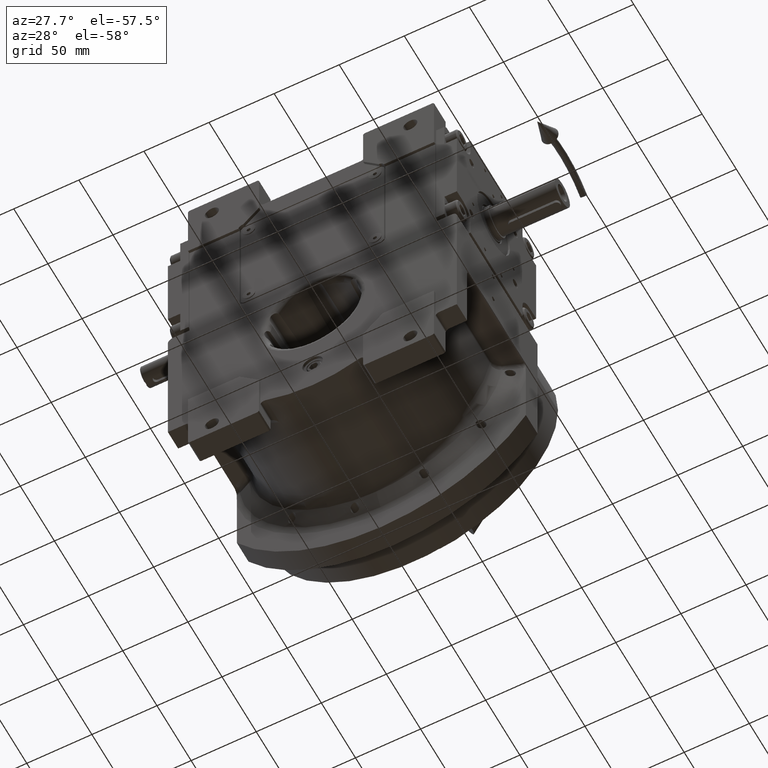
[diagram: clean part render]
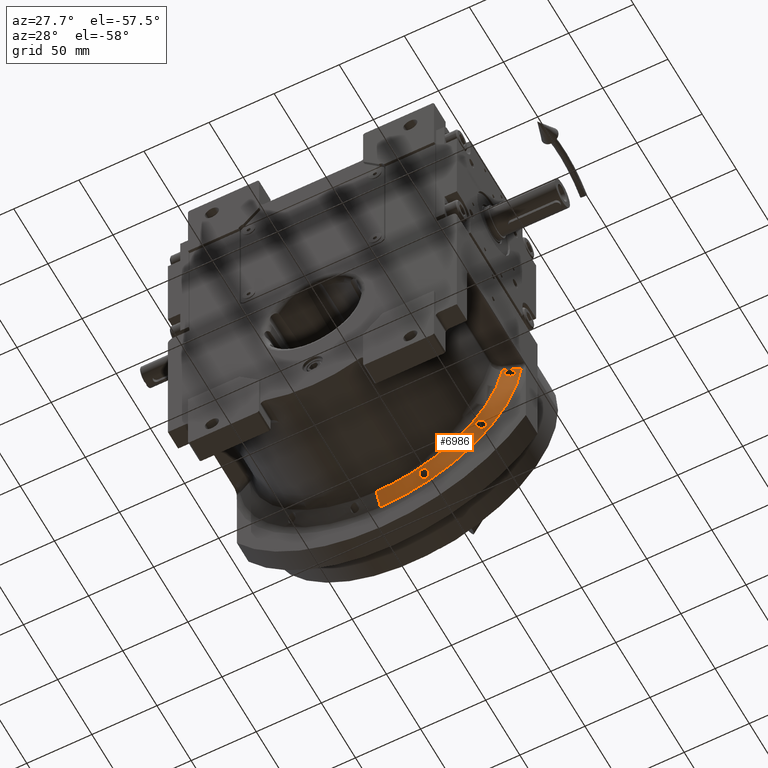
[diagram: same view with one face highlighted and labeled with its STEP entity id]
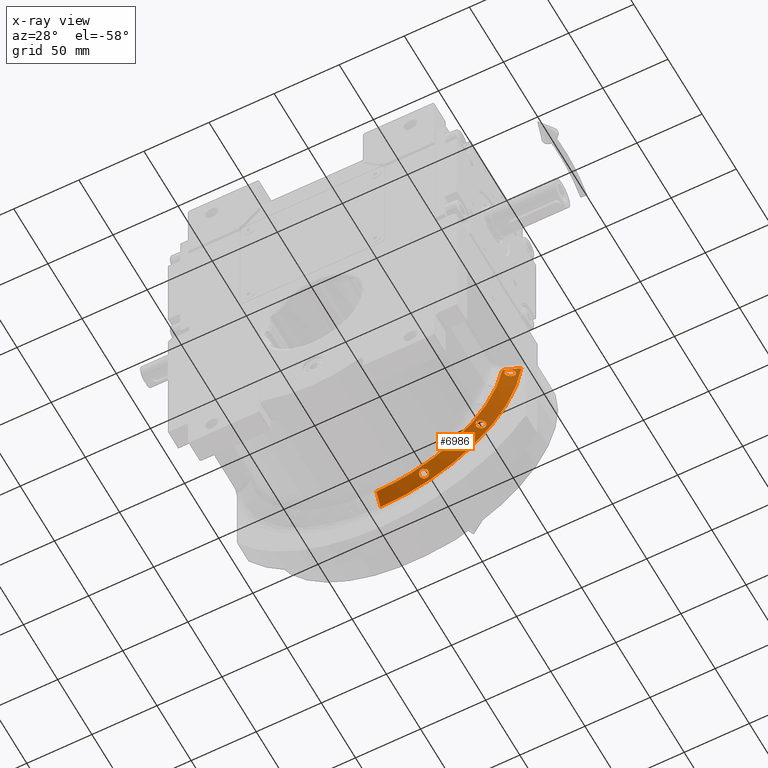
[diagram: x-ray of the same camera — body ghosted, the highlighted face saturated]
A machine part, auxiliary view. The second image highlights one B-rep face of the part: STEP entity #6986.
The next image is the same camera in x-ray: the body ghosted, the highlighted face saturated — about 0% of this face is hidden behind the body in this view.
In plain terms, the highlighted conical surface has half-angle 60 deg.
Its self-contained STEP definition (entity closure, byte-faithful):
#36 = CARTESIAN_POINT ( 'NONE',  ( 104.7305896036714898, 44.73562210325150801, -18.84664515431811083 ) ) ;
#185 = CARTESIAN_POINT ( 'NONE',  ( 32.74499979331582722, 43.56302191367302612, -99.11168312359436072 ) ) ;
#517 = CARTESIAN_POINT ( 'NONE',  ( 31.82807476254389911, 42.12333665457904885, -96.78833994094861737 ) ) ;
#576 = CARTESIAN_POINT ( 'NONE',  ( 75.50257764125468896, 41.27578349819874859, -66.20712379771359224 ) ) ;
#577 = B_SPLINE_CURVE_WITH_KNOTS ( 'NONE', 3,
 ( #46599, #5312, #36920, #57936, #16649, #37269, #31430, #10811, #47284, #26967, #26297, #11151, #32107, #42115, #53124, #42797, #63786, #58611, #11483, #32435, #53458, #25621, #67566, #12856, #17985, #28667, #38274, #43463, #48300, #37935, #23159, #66403, #64447, #58939, #11826, #53791, #1820, #28323, #54819, #38961, #6662, #17302, #14115, #59620, #43801, #64785, #49316 ),
 .UNSPECIFIED., .F., .F.,
 ( 4, 2, 1, 2, 2, 2, 2, 2, 2, 1, 1, 2, 2, 2, 1, 1, 2, 2, 2, 1, 2, 2, 2, 1, 2, 2, 4 ),
 ( 0.000000000000000000, 0.06249999999999647504, 0.09374999999999496236, 0.1093749999999941991, 0.1249999999999934497, 0.1874999999999822919, 0.2187499999999767686, 0.2499999999999712175, 0.3124999999999578670, 0.3437499999999488742, 0.3593749999999443778, 0.3671874999999439337, 0.3749999999999434896, 0.4374999999999385492, 0.4687499999999376055, 0.4843749999999358291, 0.4921874999999349409, 0.4999999999999340528, 0.5624999999999495959, 0.5937499999999562572, 0.6093749999999595879, 0.6249999999999630296, 0.6874999999999719114, 0.7187499999999755751, 0.7343749999999773515, 0.7499999999999791278, 1.000000000000000000 ),
 .UNSPECIFIED. ) ;
#714 = CARTESIAN_POINT ( 'NONE',  ( 99.21379510528599610, 41.78525512494649519, -20.46096465081143734 ) ) ;
#838 = CARTESIAN_POINT ( 'NONE',  ( 82.30257764125479980, 44.28258606598614477, -66.20712379771359224 ) ) ;
#1060 = CARTESIAN_POINT ( 'NONE',  ( 103.8688506381892154, 44.39772437606642086, -20.26160666850366709 ) ) ;
#1378 = ORIENTED_EDGE ( 'NONE', *, *, #65305, .T. ) ;
#1573 = ORIENTED_EDGE ( 'NONE', *, *, #34023, .T. ) ;
#1755 = EDGE_LOOP ( 'NONE', ( #22160, #1573 ) ) ;
#1820 = CARTESIAN_POINT ( 'NONE',  ( 80.31247240506789353, 42.27137465135887595, -63.11284630360542991 ) ) ;
#2204 = CARTESIAN_POINT ( 'NONE',  ( 99.90869290786369561, 41.61417265108745056, -14.84379635974889311 ) ) ;
#2441 = CARTESIAN_POINT ( 'NONE',  ( 98.77095998104464059, 41.48264450391729952, -20.01076472662889216 ) ) ;
#2550 = CARTESIAN_POINT ( 'NONE',  ( 104.4524746778598825, 44.33553877093233098, -16.31472158849535603 ) ) ;
#2657 = CARTESIAN_POINT ( 'NONE',  ( 37.72102010089252389, 44.51916381448128845, -99.10073259821800207 ) ) ;
#2882 = CARTESIAN_POINT ( 'NONE',  ( 101.2904685437481476, 42.37400265051466164, -14.48829029141643510 ) ) ;
#3224 = CARTESIAN_POINT ( 'NONE',  ( 99.12559328999067532, 41.21459212569217101, -15.39041156649699005 ) ) ;
#3337 = CARTESIAN_POINT ( 'NONE',  ( 37.90731452020949632, 44.44241846316928957, -98.88735861010312078 ) ) ;
#3460 = CARTESIAN_POINT ( 'NONE',  ( 34.44695147653789746, 40.81138761713231133, -93.46970191786731164 ) ) ;
#3567 = CARTESIAN_POINT ( 'NONE',  ( 104.5034803229542746, 44.37376943939167262, -16.41702113747007985 ) ) ;
#3786 = CARTESIAN_POINT ( 'NONE',  ( 35.84958330246156066, 41.07902352183315031, -93.43733019745623380 ) ) ;
#4125 = CARTESIAN_POINT ( 'NONE',  ( 35.62477118586380698, 41.01451881254240561, -93.40376681230237921 ) ) ;
#4348 = CARTESIAN_POINT ( 'NONE',  ( 32.13577895842203702, 42.95464872201561235, -98.20276710572547074 ) ) ;
#4401 = CARTESIAN_POINT ( 'NONE',  ( 81.01786868458300717, 44.69430768526024877, -68.87972968372881155 ) ) ;
#4465 = CARTESIAN_POINT ( 'NONE',  ( 37.34832133099863682, 41.76483843982503430, -94.12741214620686492 ) ) ;
#4534 = CARTESIAN_POINT ( 'NONE',  ( 89.14033502477229831, 39.87903548673092757, -65.00782844516591297 ) ) ;
#4742 = CARTESIAN_POINT ( 'NONE',  ( 77.52564601947658218, 43.34077812153503118, -69.31755484838247128 ) ) ;
#4802 = CARTESIAN_POINT ( 'NONE',  ( 32.44588961143497841, 41.16501762735255454, -94.83037568112649751 ) ) ;
#5075 = CARTESIAN_POINT ( 'NONE',  ( 78.71692355865346258, 43.96395827699821979, -69.60216623319919904 ) ) ;
#5219 = CARTESIAN_POINT ( 'NONE',  ( 99.74702419627114125, 42.13175411014589855, -20.84507893178069438 ) ) ;
#5312 = CARTESIAN_POINT ( 'NONE',  ( 75.50168352535824567, 41.18702486934389384, -65.97496794036376855 ) ) ;
#5349 = FACE_BOUND ( 'NONE', #23312, .T. ) ;
#5364 = CARTESIAN_POINT ( 'NONE',  ( 35.27085948881713762, 44.62271402355144545, -100.1891731509673775 ) ) ;
#5415 = CARTESIAN_POINT ( 'NONE',  ( 80.01211281521847241, 44.45760885408973451, -69.42112908227252888 ) ) ;
#5562 = CARTESIAN_POINT ( 'NONE',  ( 102.1859895358869466, 43.55316441206873179, -21.20908850535797896 ) ) ;
#5892 = CARTESIAN_POINT ( 'NONE',  ( 99.48311576402430489, 41.96223658807966217, -20.67216164523016531 ) ) ;
#6113 = AXIS2_PLACEMENT_3D ( 'NONE', #64490, #27682, #26338 ) ;
#6241 = CARTESIAN_POINT ( 'NONE',  ( 103.3774309199856987, 44.16679846782898267, -20.68573080184946278 ) ) ;
#6662 = CARTESIAN_POINT ( 'NONE',  ( 81.10081217298160539, 42.80630600283812726, -63.60911071821248441 ) ) ;
#6986 = ADVANCED_FACE ( 'NONE', ( #17009, #48001, #5349, #10849 ), #24772, .T. ) ;
#7723 = CARTESIAN_POINT ( 'NONE',  ( 100.9756395425152675, 42.19624724659421133, -14.51481566138915547 ) ) ;
#7833 = CARTESIAN_POINT ( 'NONE',  ( 38.19283949003306589, 44.27539490606698536, -98.46728952848269500 ) ) ;
#8044 = CARTESIAN_POINT ( 'NONE',  ( 99.48495558497224067, 41.39343208339167290, -15.09147301574736844 ) ) ;
#8230 = VERTEX_POINT ( 'NONE', #67617 ) ;
#8379 = CARTESIAN_POINT ( 'NONE',  ( 100.1612373964448182, 41.74909804742391373, -14.73327654689951416 ) ) ;
#8713 = CARTESIAN_POINT ( 'NONE',  ( 99.06054768989815784, 41.18296169481145341, -15.45210563829882844 ) ) ;
#8944 = CARTESIAN_POINT ( 'NONE',  ( 37.09040238943345713, 41.60670909699665998, -93.93498921525463174 ) ) ;
#9006 =( BOUNDED_CURVE ( )  B_SPLINE_CURVE ( 3, ( #58162, #11704, #22360, #16190 ),
 .UNSPECIFIED., .F., .F. ) 
 B_SPLINE_CURVE_WITH_KNOTS ( ( 4, 4 ),
 ( 0.07171175334500150267, 1.532246419677093741 ),
 .UNSPECIFIED. ) 
 CURVE ( )  GEOMETRIC_REPRESENTATION_ITEM ( )  RATIONAL_B_SPLINE_CURVE ( ( 1.000000000000000000, 0.8299973995656204639, 0.8299973995656204639, 1.000000000000000000 ) ) 
 REPRESENTATION_ITEM ( '' )  );
#9277 = CARTESIAN_POINT ( 'NONE',  ( 32.15635129628264366, 41.37616549507744423, -95.31507513556806543 ) ) ;
#9503 = CARTESIAN_POINT ( 'NONE',  ( 32.44088902882023717, 43.30831218894786616, -98.74738796992055256 ) ) ;
#9561 = CARTESIAN_POINT ( 'NONE',  ( 76.50053194958211122, 42.62877045109459573, -68.61366934577620214 ) ) ;
#9620 = CARTESIAN_POINT ( 'NONE',  ( 31.90722771532335855, 41.72991313817244219, -96.04450625783802309 ) ) ;
#9898 = CARTESIAN_POINT ( 'NONE',  ( 82.04631752290495683, 44.63937304269068562, -67.50136295896552951 ) ) ;
#9962 = CARTESIAN_POINT ( 'NONE',  ( 38.54567808786198668, 42.99278898431444418, -95.93945258858616398 ) ) ;
#10240 = CARTESIAN_POINT ( 'NONE',  ( 82.30312027397457086, 44.36707909284992013, -66.43993045154326182 ) ) ;
#10375 = CARTESIAN_POINT ( 'NONE',  ( 102.7737919349080755, 43.86262480539544839, -21.01216276955256745 ) ) ;
#10524 = CARTESIAN_POINT ( 'NONE',  ( 33.35947524260439678, 43.96307997796608191, -99.63762349857780976 ) ) ;
#10574 = CARTESIAN_POINT ( 'NONE',  ( 80.37038999809533379, 44.56015274701233153, -69.27850561015429776 ) ) ;
#10722 = CARTESIAN_POINT ( 'NONE',  ( 103.7637382403772079, 44.34947224226519324, -20.36349651328253429 ) ) ;
#10811 = CARTESIAN_POINT ( 'NONE',  ( 75.75725691288312191, 40.89895479112651344, -64.91691232173754145 ) ) ;
#10849 = FACE_OUTER_BOUND ( 'NONE', #22424, .T. ) ;
#10919 = CARTESIAN_POINT ( 'NONE',  ( 78.68750468294369682, 43.95056293916168499, -69.60040890559221793 ) ) ;
#11057 = CARTESIAN_POINT ( 'NONE',  ( 102.6448794516906560, 43.79565507627505383, -21.06343637548787839 ) ) ;
#11139 = VERTEX_POINT ( 'NONE', #838 ) ;
#11151 = CARTESIAN_POINT ( 'NONE',  ( 76.27655925909336077, 40.80134409709847887, -64.04341505215541019 ) ) ;
#11483 = CARTESIAN_POINT ( 'NONE',  ( 77.62005662338852119, 41.03680779787679711, -63.05707468420436612 ) ) ;
#11704 = CARTESIAN_POINT ( 'NONE',  ( 58.33757220637139795, 46.16024934371661459, -108.8793713190323729 ) ) ;
#11730 = CARTESIAN_POINT ( 'NONE',  ( 100.1827498323761745, 42.40190703451744270, -21.04707372465811588 ) ) ;
#11826 = CARTESIAN_POINT ( 'NONE',  ( 80.16297122289289234, 42.18066916998881055, -63.04881094446461276 ) ) ;
#12165 = VERTEX_POINT ( 'NONE', #29107 ) ;
#12390 = B_SPLINE_CURVE_WITH_KNOTS ( 'NONE', 3,
 ( #24799, #39946, #34417, #66771 ),
 .UNSPECIFIED., .F., .F.,
 ( 4, 4 ),
 ( 0.000000000000000000, 1.000000000000000000 ),
 .UNSPECIFIED. ) ;
#12533 = CARTESIAN_POINT ( 'NONE',  ( 101.4513232712928925, 42.46570187707141031, -14.48539551056563290 ) ) ;
#12856 = CARTESIAN_POINT ( 'NONE',  ( 78.24546640842405054, 41.24727612803696530, -62.86319037576406998 ) ) ;
#12879 = CARTESIAN_POINT ( 'NONE',  ( 104.2787028895823198, 44.21045678083616792, -16.02107098923681505 ) ) ;
#13112 = CARTESIAN_POINT ( 'NONE',  ( 98.03519856025749846, 40.83363030597479337, -17.88576229969384812 ) ) ;
#13476 = EDGE_CURVE ( 'NONE', #17799, #52347, #45724, .T. ) ;
#13661 = CARTESIAN_POINT ( 'NONE',  ( 38.42435501964425981, 44.04428755448597599, -97.94714423656049007 ) ) ;
#13782 = CARTESIAN_POINT ( 'NONE',  ( 37.88282062409838602, 42.16135516925404403, -94.65373359098414596 ) ) ;
#13891 = CARTESIAN_POINT ( 'NONE',  ( 98.54691129663279980, 40.94677882052950935, -16.07630637490219883 ) ) ;
#14058 = ORIENTED_EDGE ( 'NONE', *, *, #15629, .T. ) ;
#14115 = CARTESIAN_POINT ( 'NONE',  ( 81.29213445721266851, 42.95686035362223265, -63.78771252381076806 ) ) ;
#14450 = CARTESIAN_POINT ( 'NONE',  ( 32.78765595522322940, 41.00567087000346334, -94.42060033474412251 ) ) ;
#14515 = EDGE_CURVE ( 'NONE', #63971, #8230, #9006, .T. ) ;
#14657 = CARTESIAN_POINT ( 'NONE',  ( 38.51068554800115606, 43.92368961525055937, -97.68877986685522785 ) ) ;
#14711 = CARTESIAN_POINT ( 'NONE',  ( 81.52601017221329016, 44.73009675275028485, -68.37373495481762120 ) ) ;
#14775 = CARTESIAN_POINT ( 'NONE',  ( 35.33358568600392857, 40.94743445858588160, -93.38985085392012309 ) ) ;
#14883 = CARTESIAN_POINT ( 'NONE',  ( -9.226961790163737573E-14, 39.87903547113305081, -97.99999599669763484 ) ) ;
#14996 = CARTESIAN_POINT ( 'NONE',  ( 33.84706014394660656, 44.19396274025495330, -99.89529780185021934 ) ) ;
#15047 = CARTESIAN_POINT ( 'NONE',  ( 80.52627783681433016, 44.59788315243910972, -69.19750488074448924 ) ) ;
#15109 = CARTESIAN_POINT ( 'NONE',  ( 36.90631149490345564, 41.50781018443826298, -93.82346904022047340 ) ) ;
#15339 = CARTESIAN_POINT ( 'NONE',  ( 35.12089148859804055, 44.59271921877327571, -100.1867678159644299 ) ) ;
#15394 = CARTESIAN_POINT ( 'NONE',  ( 76.46393111034471701, 42.59872135953639827, -68.57652720262805701 ) ) ;
#15629 = EDGE_CURVE ( 'NONE', #12165, #65087, #46777, .T. ) ;
#16018 = CARTESIAN_POINT ( 'NONE',  ( 32.78335572601340431, 43.59213403231480299, -99.15211301264297106 ) ) ;
#16072 = CARTESIAN_POINT ( 'NONE',  ( 80.04154933893974544, 44.46655603206954765, -69.41084387641491560 ) ) ;
#16190 = CARTESIAN_POINT ( 'NONE',  ( 108.2182055107325880, 46.16026080517839603, -11.98086067912928065 ) ) ;
#16214 = CARTESIAN_POINT ( 'NONE',  ( 104.1181562972415264, 44.50795666113731386, -19.97834227322281464 ) ) ;
#16361 = CARTESIAN_POINT ( 'NONE',  ( 34.82942686218657258, 44.52947181316208969, -100.1727188483931599 ) ) ;
#16557 = CARTESIAN_POINT ( 'NONE',  ( 100.6255098797644365, 42.66905429269164785, -21.19006553426313033 ) ) ;
#16649 = CARTESIAN_POINT ( 'NONE',  ( 75.63801459143994066, 40.96968916573348451, -65.24366397908698900 ) ) ;
#16876 = CARTESIAN_POINT ( 'NONE',  ( 100.2300388395034503, 42.43080399300752958, -21.06541844608342728 ) ) ;
#17009 = FACE_BOUND ( 'NONE', #54639, .T. ) ;
#17302 = CARTESIAN_POINT ( 'NONE',  ( 81.21642836484248562, 42.89658102381394400, -63.71506228927112403 ) ) ;
#17525 = B_SPLINE_CURVE_WITH_KNOTS ( 'NONE', 3,
 ( #47649, #50366, #54842, #38646, #24212, #28694, #13891, #60330, #44504, #49342, #8713, #65497, #3224, #66174, #8044, #19030, #2204, #40020, #8379, #59987, #23184, #18359, #60992, #7723, #55509, #2882, #18013, #12533, #28348, #45191, #29347, #34825, #49693, #33831, #59646, #44174, #55836, #29682, #39344, #50696, #65151, #17676, #38988, #18705, #12879, #23518, #60667, #2550, #3567, #50028, #34168, #55182 ),
 .UNSPECIFIED., .F., .F.,
 ( 4, 2, 2, 2, 1, 1, 2, 2, 2, 1, 1, 2, 2, 2, 1, 2, 2, 2, 2, 2, 2, 1, 2, 2, 2, 2, 2, 2, 4 ),
 ( 0.000000000000000000, 0.06249999999999436562, 0.1249999999999887312, 0.1874999999999830969, 0.2187499999999798495, 0.2343749999999791833, 0.2421874999999792666, 0.2499999999999794054, 0.3124999999999783507, 0.3437499999999792943, 0.3593749999999796274, 0.3671874999999798495, 0.3749999999999800160, 0.4374999999999737987, 0.4687499999999686917, 0.4843749999999676370, 0.4999999999999666933, 0.5624999999999729106, 0.5937499999999760192, 0.6249999999999790168, 0.6874999999999823475, 0.7187499999999851230, 0.7343749999999857891, 0.7499999999999863443, 0.8124999999999893419, 0.8281249999999901190, 0.8437499999999907851, 0.8749999999999922284, 1.000000000000000000 ),
 .UNSPECIFIED. ) ;
#17676 = CARTESIAN_POINT ( 'NONE',  ( 103.9448440771420650, 43.98171950685222242, -15.58097857915241313 ) ) ;
#17799 = VERTEX_POINT ( 'NONE', #50178 ) ;
#17985 = CARTESIAN_POINT ( 'NONE',  ( 78.57487176260892170, 41.38030850353377588, -62.82046974805215456 ) ) ;
#18013 = CARTESIAN_POINT ( 'NONE',  ( 101.3966584333034575, 42.43446900027918645, -14.48553003120045624 ) ) ;
#18359 = CARTESIAN_POINT ( 'NONE',  ( 100.4635916937450872, 41.91237663432875138, -14.62059298539918117 ) ) ;
#18705 = CARTESIAN_POINT ( 'NONE',  ( 104.2478999949955067, 44.18883160827261491, -15.97484969750702710 ) ) ;
#18816 = CARTESIAN_POINT ( 'NONE',  ( 38.60959824956258046, 43.69120316029110995, -97.21661484462447333 ) ) ;
#18917 = ORIENTED_EDGE ( 'NONE', *, *, #14515, .T. ) ;
#18933 = CARTESIAN_POINT ( 'NONE',  ( 31.84665137193449524, 41.89117898233123327, -96.35887618413663347 ) ) ;
#19030 = CARTESIAN_POINT ( 'NONE',  ( 99.76459821094026381, 41.53853669918795077, -14.92183869733882418 ) ) ;
#19601 = CARTESIAN_POINT ( 'NONE',  ( 32.00307793694933878, 41.56359824132363201, -95.70891155033174869 ) ) ;
#19873 = CARTESIAN_POINT ( 'NONE',  ( 79.76979456085048525, 44.38276097955477439, -69.50251896753083258 ) ) ;
#20153 = CARTESIAN_POINT ( 'NONE',  ( 35.65592965769887002, 44.68331100746483031, -100.1642343648401834 ) ) ;
#20268 = CARTESIAN_POINT ( 'NONE',  ( 35.27326082197069468, 40.93435326682733688, -93.38843303710409316 ) ) ;
#20494 = VERTEX_POINT ( 'NONE', #56350 ) ;
#20545 = CARTESIAN_POINT ( 'NONE',  ( 82.06759414546115750, 44.62952590793354091, -67.44863197980997427 ) ) ;
#20887 = CARTESIAN_POINT ( 'NONE',  ( 75.52036243079649580, 41.63009499858360130, -67.11764464367766436 ) ) ;
#21174 = CARTESIAN_POINT ( 'NONE',  ( 32.07334791036149824, 42.86354631413477989, -98.05716817066276292 ) ) ;
#21516 = CARTESIAN_POINT ( 'NONE',  ( 36.90852343404625913, 44.72228581283231108, -99.78255302302424923 ) ) ;
#21715 = CARTESIAN_POINT ( 'NONE',  ( 99.15467528702860989, 41.74563998107998231, -20.40785545063929263 ) ) ;
#21940 = VERTEX_POINT ( 'NONE', #40809 ) ;
#22054 = CARTESIAN_POINT ( 'NONE',  ( 102.6178391218011825, 43.78154054041961274, -21.07358486424262978 ) ) ;
#22160 = ORIENTED_EDGE ( 'NONE', *, *, #24070, .T. ) ;
#22360 = CARTESIAN_POINT ( 'NONE',  ( 101.7988371762501458, 46.16025378558333614, -69.96418493751507128 ) ) ;
#22424 = EDGE_LOOP ( 'NONE', ( #14058, #63505, #18917, #1378 ) ) ;
#23159 = CARTESIAN_POINT ( 'NONE',  ( 79.34677063637943206, 41.73225561881556445, -62.82946443999376385 ) ) ;
#23184 = CARTESIAN_POINT ( 'NONE',  ( 100.2402096000189857, 41.79163065792570819, -14.70254937281892715 ) ) ;
#23312 = EDGE_LOOP ( 'NONE', ( #29716, #54799 ) ) ;
#23518 = CARTESIAN_POINT ( 'NONE',  ( 104.3382350715747720, 44.25270828209544050, -16.11528182749843197 ) ) ;
#23637 = CARTESIAN_POINT ( 'NONE',  ( 37.68197259683160638, 44.53347300127452257, -99.14210103584905198 ) ) ;
#23982 = CARTESIAN_POINT ( 'NONE',  ( 38.62916580103675557, 43.58119393290067478, -97.00374101739062382 ) ) ;
#24070 = EDGE_CURVE ( 'NONE', #20494, #11139, #577, .T. ) ;
#24212 = CARTESIAN_POINT ( 'NONE',  ( 98.23717430467665679, 40.83033680861726111, -16.70848875820821178 ) ) ;
#24322 = VERTEX_POINT ( 'NONE', #37771 ) ;
#24439 = CARTESIAN_POINT ( 'NONE',  ( 36.52666832229023441, 41.33204388856765377, -93.64511865316580952 ) ) ;
#24767 = CARTESIAN_POINT ( 'NONE',  ( 32.73032363297463121, 41.02784619557518653, -94.48113809204807012 ) ) ;
#24772 = CONICAL_SURFACE ( 'NONE', #6113, 1.000000000000000000, 1.047197088922029673 ) ;
#24799 = CARTESIAN_POINT ( 'NONE',  ( 108.2182055107325880, 46.16026080517839603, -11.98086067912928065 ) ) ;
#25042 = CARTESIAN_POINT ( 'NONE',  ( 77.62553339457680579, 43.40013437254767581, -69.36007630461674012 ) ) ;
#25108 = CARTESIAN_POINT ( 'NONE',  ( 36.60555021145350452, 41.36725668673756928, -93.67978289001671044 ) ) ;
#25216 = CARTESIAN_POINT ( 'NONE',  ( -9.237055564881299892E-14, -16.12399904833045028, -1.000000000000081712 ) ) ;
#25387 = CARTESIAN_POINT ( 'NONE',  ( 78.44429924397222464, 43.83876520124056242, -69.58306120969164965 ) ) ;
#25454 = CARTESIAN_POINT ( 'NONE',  ( 38.00891870190617539, 42.27798150892942175, -94.82080851090621820 ) ) ;
#25529 = CARTESIAN_POINT ( 'NONE',  ( 50.67561382229939682, 39.87903548000032572, -97.99999599986676913 ) ) ;
#25621 = CARTESIAN_POINT ( 'NONE',  ( 77.78874032905120828, 41.08973564903401865, -62.99460111722117261 ) ) ;
#25782 = CARTESIAN_POINT ( 'NONE',  ( 33.14764801834341057, 40.87511901411349413, -94.05609349408400988 ) ) ;
#26064 = CARTESIAN_POINT ( 'NONE',  ( 82.16594677295465488, 44.57292025161360272, -67.17411852074934586 ) ) ;
#26297 = CARTESIAN_POINT ( 'NONE',  ( 76.20257842872405263, 40.80321459031897291, -64.13645383444205095 ) ) ;
#26338 = DIRECTION ( 'NONE',  ( 0.000000000000000000, 0.000000000000000000, -1.000000000000000000 ) ) ;
#26351 = CARTESIAN_POINT ( 'NONE',  ( 32.27739546152083250, 43.13302258359991015, -98.48148961636637466 ) ) ;
#26544 = CARTESIAN_POINT ( 'NONE',  ( 100.4754167236542912, 42.57957385941583794, -21.15069894127817207 ) ) ;
#26872 = CARTESIAN_POINT ( 'NONE',  ( 102.9502439514855325, 43.95335311247350063, -20.93347145773287465 ) ) ;
#26967 = CARTESIAN_POINT ( 'NONE',  ( 75.99597750921316219, 40.82022767486236603, -64.42702842002941566 ) ) ;
#27213 = CARTESIAN_POINT ( 'NONE',  ( 102.6966471142069679, 43.82259570642860780, -21.04327498820180153 ) ) ;
#27278 = EDGE_CURVE ( 'NONE', #65087, #63971, #55833, .T. ) ;
#27551 = CARTESIAN_POINT ( 'NONE',  ( 104.3222050572233996, 44.59323933013791219, -19.69714285435020784 ) ) ;
#27682 = DIRECTION ( 'NONE',  ( 0.000000000000000000, 1.000000000000000000, 0.000000000000000000 ) ) ;
#28323 = CARTESIAN_POINT ( 'NONE',  ( 80.54891788356816562, 42.41871358869178010, -63.22497384856382041 ) ) ;
#28348 = CARTESIAN_POINT ( 'NONE',  ( 101.7126920522022857, 42.61551288730604625, -14.49058417200597049 ) ) ;
#28583 = CARTESIAN_POINT ( 'NONE',  ( 98.91494487785921308, 41.58351784001801121, -20.17929146156405551 ) ) ;
#28667 = CARTESIAN_POINT ( 'NONE',  ( 78.74074780255688211, 41.45039262046881845, -62.80730352441980813 ) ) ;
#28694 = CARTESIAN_POINT ( 'NONE',  ( 98.43097439858907194, 40.89951008704645119, -16.27733169232059396 ) ) ;
#28806 = CARTESIAN_POINT ( 'NONE',  ( 38.00712664940181185, 44.38942751437824086, -98.75065622763210627 ) ) ;
#29107 = CARTESIAN_POINT ( 'NONE',  ( 96.85710769208640158, 39.87901816609754491, -14.92320608909719937 ) ) ;
#29347 = CARTESIAN_POINT ( 'NONE',  ( 102.2228160116760591, 42.91405607315036974, -14.57611274210384877 ) ) ;
#29454 = CARTESIAN_POINT ( 'NONE',  ( 38.39558140513734230, 44.07896229779984054, -98.02293163335460235 ) ) ;
#29576 = CARTESIAN_POINT ( 'NONE',  ( 34.21771653373028244, 40.79995127537516453, -93.53279759490936840 ) ) ;
#29682 = CARTESIAN_POINT ( 'NONE',  ( 103.5018441398449625, 43.69494187197630453, -15.18176973595734047 ) ) ;
#29716 = ORIENTED_EDGE ( 'NONE', *, *, #40670, .T. ) ;
#29906 = CARTESIAN_POINT ( 'NONE',  ( 37.72395338458087366, 42.03377355792886760, -94.47923328894046335 ) ) ;
#30235 = CARTESIAN_POINT ( 'NONE',  ( 34.97388373081166435, 40.87614924657766124, -93.39343651702034776 ) ) ;
#30458 = CARTESIAN_POINT ( 'NONE',  ( 32.09374764844347538, 42.89445642143127913, -98.10682464979275608 ) ) ;
#30583 = CARTESIAN_POINT ( 'NONE',  ( 32.04981106862107509, 41.50238408036727122, -95.58144257161106339 ) ) ;
#30862 = CARTESIAN_POINT ( 'NONE',  ( 79.22028661386453052, 44.17911143910448857, -69.59469178673887768 ) ) ;
#31141 = CARTESIAN_POINT ( 'NONE',  ( 33.54460616476735879, 44.05878053402745564, -99.75039208062162288 ) ) ;
#31190 = CARTESIAN_POINT ( 'NONE',  ( 76.44678389102237759, 42.58449988957939070, -68.55875357665574654 ) ) ;
#31210 = VECTOR ( 'NONE', #56507, 1000.000000000000114 ) ;
#31336 = CARTESIAN_POINT ( 'NONE',  ( 101.1360482391654614, 42.96809362748430061, -21.27923594639372951 ) ) ;
#31430 = CARTESIAN_POINT ( 'NONE',  ( 75.73609687820561476, 40.90943980829521109, -64.96949025173456960 ) ) ;
#31486 = CARTESIAN_POINT ( 'NONE',  ( 33.10116821148039890, 43.80982289683498010, -99.44394940356680479 ) ) ;
#31534 = B_SPLINE_CURVE_WITH_KNOTS ( 'NONE', 3,
 ( #46705, #10240, #67351, #42220, #26064, #67674, #20545, #9898, #57691, #41207, #14711, #52211, #58041, #4401, #63205, #15047, #10574, #52553, #51883, #16072, #5415, #19873, #41537, #30862, #37033, #62181, #56670, #5075, #10919, #25387, #31871, #57025, #52895, #25042, #4742, #46034, #40870, #68017, #62518, #61843, #9561, #15394, #31190, #46369, #20887, #576 ),
 .UNSPECIFIED., .F., .F.,
 ( 4, 2, 1, 2, 2, 1, 2, 2, 2, 1, 1, 2, 2, 2, 1, 1, 2, 2, 2, 2, 2, 2, 1, 1, 2, 2, 4 ),
 ( 0.000000000000000000, 0.06249999999999614197, 0.09374999999999593381, 0.1093749999999958228, 0.1249999999999957256, 0.1874999999999993339, 0.2187499999999996392, 0.2500000000000000000, 0.3125000000000004996, 0.3437500000000000555, 0.3593750000000006661, 0.3671875000000012212, 0.3750000000000017208, 0.4374999999999927280, 0.4687499999999893974, 0.4843749999999893974, 0.4921874999999890643, 0.4999999999999886757, 0.5624999999999874545, 0.5937499999999873435, 0.6249999999999871214, 0.6874999999999860112, 0.7187499999999849010, 0.7343749999999830136, 0.7421874999999834577, 0.7499999999999840128, 1.000000000000000000 ),
 .UNSPECIFIED. ) ;
#31821 = CARTESIAN_POINT ( 'NONE',  ( 35.18094931738271214, 44.60497733283185084, -100.1881969535032653 ) ) ;
#31871 = CARTESIAN_POINT ( 'NONE',  ( 78.23368783038689855, 43.73440425110513985, -69.54794741473649822 ) ) ;
#32107 = CARTESIAN_POINT ( 'NONE',  ( 76.43483176846280003, 40.80520418057879795, -63.86486381045758520 ) ) ;
#32257 = CARTESIAN_POINT ( 'NONE',  ( 38.62807476254390338, 43.46545735058870008, -96.78833994094861737 ) ) ;
#32435 = CARTESIAN_POINT ( 'NONE',  ( 77.70318614560385129, 41.06257708642894499, -63.02545465980591644 ) ) ;
#33831 = CARTESIAN_POINT ( 'NONE',  ( 102.6209533077755509, 43.15152178767245772, -14.69749744659890567 ) ) ;
#34003 = CARTESIAN_POINT ( 'NONE',  ( 31.82807476254389911, 42.12333665457904885, -96.78833994094861737 ) ) ;
#34023 = EDGE_CURVE ( 'NONE', #11139, #20494, #31534, .T. ) ;
#34168 = CARTESIAN_POINT ( 'NONE',  ( 104.8273013760487942, 44.64782089235229279, -17.39560961409364026 ) ) ;
#34417 = CARTESIAN_POINT ( 'NONE',  ( 100.4589475890421681, 41.85258327527544964, -13.99357198894719012 ) ) ;
#34657 = EDGE_CURVE ( 'NONE', #24322, #21940, #17525, .T. ) ;
#34722 = CARTESIAN_POINT ( 'NONE',  ( 38.31852365966244633, 42.63733587334986197, -95.36722266137670090 ) ) ;
#34825 = CARTESIAN_POINT ( 'NONE',  ( 102.3234099913674839, 42.97364334142391584, -14.60176980586504136 ) ) ;
#35059 = CARTESIAN_POINT ( 'NONE',  ( 36.34083169517372625, 41.25355520356641392, -93.57162032167619259 ) ) ;
#35599 = CARTESIAN_POINT ( 'NONE',  ( 38.40504695346741926, 44.06785230482503124, -97.99855546647295057 ) ) ;
#35721 = CARTESIAN_POINT ( 'NONE',  ( 37.70453566480276919, 42.01843596253127799, -94.45838117839626591 ) ) ;
#36062 = CARTESIAN_POINT ( 'NONE',  ( 37.66689026473860480, 41.98922828797925888, -94.41893524701096396 ) ) ;
#36293 = CARTESIAN_POINT ( 'NONE',  ( 35.08956182458513950, 44.58610297574461612, -100.1856025696686316 ) ) ;
#36493 = CARTESIAN_POINT ( 'NONE',  ( 104.8310003806260653, 44.74553346140694998, -18.38025871206725270 ) ) ;
#36506 = CARTESIAN_POINT ( 'NONE',  ( -6.107335892911600708E-14, 46.16024936020976099, -108.8793717567185979 ) ) ;
#36628 = CARTESIAN_POINT ( 'NONE',  ( 34.11160101951073642, 44.30233867233356904, -100.0036922858163138 ) ) ;
#36829 = CARTESIAN_POINT ( 'NONE',  ( 104.4389522626597255, 44.63794620315431416, -19.49517643064478989 ) ) ;
#36920 = CARTESIAN_POINT ( 'NONE',  ( 75.52450676171606858, 41.11037344732611132, -65.74688981335408755 ) ) ;
#36979 = CARTESIAN_POINT ( 'NONE',  ( 37.30408280256563813, 44.66194106418635101, -99.52352782666923758 ) ) ;
#37033 = CARTESIAN_POINT ( 'NONE',  ( 79.05366936797936717, 44.11171866996900803, -69.60741040519445733 ) ) ;
#37269 = CARTESIAN_POINT ( 'NONE',  ( 75.69508814810444619, 40.93263151075776562, -65.07889684357790827 ) ) ;
#37513 = CARTESIAN_POINT ( 'NONE',  ( 99.09733406536042821, 41.70704069608271425, -20.35477935028744056 ) ) ;
#37771 = CARTESIAN_POINT ( 'NONE',  ( 98.03519856025749846, 40.83363030597479337, -17.88576229969384812 ) ) ;
#37935 = CARTESIAN_POINT ( 'NONE',  ( 79.10675291266188935, 41.61786218085986633, -62.81314824716838530 ) ) ;
#38274 = CARTESIAN_POINT ( 'NONE',  ( 78.93637547654861919, 41.53840129963634809, -62.80632758115113745 ) ) ;
#38646 = CARTESIAN_POINT ( 'NONE',  ( 98.16275767675097086, 40.81001937456576911, -16.93460426712880107 ) ) ;
#38961 = CARTESIAN_POINT ( 'NONE',  ( 80.97905923418889529, 42.71646290307219118, -63.51219422021624439 ) ) ;
#38988 = CARTESIAN_POINT ( 'NONE',  ( 104.0887190353226970, 44.07820863578511705, -15.74816605726235252 ) ) ;
#39231 = CARTESIAN_POINT ( 'NONE',  ( 98.51885252145659422, 41.29874734807391690, -19.64869723852039129 ) ) ;
#39344 = CARTESIAN_POINT ( 'NONE',  ( 103.6250432169694591, 43.77391736310205772, -15.28403382368467689 ) ) ;
#39803 = CARTESIAN_POINT ( 'NONE',  ( 38.45232826969819939, 44.00867195921543384, -97.86990013915099951 ) ) ;
#39917 = CARTESIAN_POINT ( 'NONE',  ( 33.54113876661217830, 40.81024780495135218, -93.79742468116198495 ) ) ;
#39946 = CARTESIAN_POINT ( 'NONE',  ( 104.2458824059487625, 43.94632607771405475, -13.01284434774804843 ) ) ;
#40020 = CARTESIAN_POINT ( 'NONE',  ( 100.0843398836221780, 41.70781097197262000, -14.76464400644864305 ) ) ;
#40250 = CARTESIAN_POINT ( 'NONE',  ( 35.18299290158923753, 40.91542844098399456, -93.38747625057740720 ) ) ;
#40485 = EDGE_CURVE ( 'NONE', #21940, #24322, #55845, .T. ) ;
#40590 = CARTESIAN_POINT ( 'NONE',  ( 32.67295286272302945, 41.05114216773844049, -94.54370473030608935 ) ) ;
#40670 = EDGE_CURVE ( 'NONE', #52347, #17799, #65738, .T. ) ;
#40809 = CARTESIAN_POINT ( 'NONE',  ( 104.8351985602573961, 44.69990819521994752, -17.88576229969384812 ) ) ;
#40870 = CARTESIAN_POINT ( 'NONE',  ( 77.06046880759319606, 43.04647010211494518, -69.07291579574777529 ) ) ;
#41148 = CARTESIAN_POINT ( 'NONE',  ( 32.85979430969842241, 43.64807284954471100, -99.22887516624798820 ) ) ;
#41207 = CARTESIAN_POINT ( 'NONE',  ( 81.74838826779995316, 44.72501999572416054, -68.09458343714203465 ) ) ;
#41267 = CARTESIAN_POINT ( 'NONE',  ( 38.22669210359238434, 42.51875717691257250, -95.18277613687816086 ) ) ;
#41487 = CARTESIAN_POINT ( 'NONE',  ( 35.47939591759508460, 44.65954627265315224, -100.1832810321232472 ) ) ;
#41537 = CARTESIAN_POINT ( 'NONE',  ( 79.55155849218724029, 44.30689930293056733, -69.55266286122206054 ) ) ;
#42115 = CARTESIAN_POINT ( 'NONE',  ( 76.52047480483949471, 40.81107868498899904, -63.77811600357890853 ) ) ;
#42168 = CARTESIAN_POINT ( 'NONE',  ( 32.56661622350581808, 43.42282201633314997, -98.91485192661072290 ) ) ;
#42220 = CARTESIAN_POINT ( 'NONE',  ( 82.20988431969101384, 44.53149553844777131, -67.00675650307780984 ) ) ;
#42512 = CARTESIAN_POINT ( 'NONE',  ( 36.00587709283624349, 44.72043279119705517, -100.1075064602162428 ) ) ;
#42701 = CARTESIAN_POINT ( 'NONE',  ( 99.11561069391657952, 41.71937164089466421, -20.37194564591705515 ) ) ;
#42797 = CARTESIAN_POINT ( 'NONE',  ( 76.97331957789415924, 40.87179218679108317, -63.39664779006977113 ) ) ;
#43040 = CARTESIAN_POINT ( 'NONE',  ( 101.7709393800822397, 43.32647280787170985, -21.27620683196905205 ) ) ;
#43463 = CARTESIAN_POINT ( 'NONE',  ( 79.02067128000572893, 41.57745727843883543, -62.80899727661325471 ) ) ;
#43801 = CARTESIAN_POINT ( 'NONE',  ( 81.96682214644113174, 43.51547473551042344, -64.49519836501067971 ) ) ;
#44174 = CARTESIAN_POINT ( 'NONE',  ( 103.1064655648901578, 43.44699293467886747, -14.91679612368455921 ) ) ;
#44504 = CARTESIAN_POINT ( 'NONE',  ( 98.85846163664757569, 41.08642396832109256, -15.66141834365189567 ) ) ;
#44620 = CARTESIAN_POINT ( 'NONE',  ( 37.66318402749902816, 44.54011264080095600, -99.16154247257793486 ) ) ;
#44964 = CARTESIAN_POINT ( 'NONE',  ( 38.54888317602063097, 43.84762596899442855, -97.53204027075987881 ) ) ;
#45191 = CARTESIAN_POINT ( 'NONE',  ( 101.9186480834394786, 42.73509198683751009, -14.51339354920894920 ) ) ;
#45414 = CARTESIAN_POINT ( 'NONE',  ( 36.68561329316544573, 41.40388463830313270, -93.71659056693724210 ) ) ;
#45724 = B_SPLINE_CURVE_WITH_KNOTS ( 'NONE', 3,
 ( #61790, #23982, #18816, #44964, #14657, #39803, #13661, #35599, #29454, #50469, #7833, #28806, #3337, #49809, #2657, #23637, #44620, #36979, #21516, #52495, #42512, #20153, #41487, #5364, #31821, #15339, #36293, #16361, #63497, #63147, #36628, #56615, #14996, #67615, #57987, #31141, #10524, #31486, #62467, #41148, #16018, #185, #42168, #9503, #26351, #47337, #4348, #30458, #21174, #57309, #62128, #517 ),
 .UNSPECIFIED., .F., .F.,
 ( 4, 2, 1, 1, 2, 2, 2, 1, 1, 2, 2, 2, 2, 1, 1, 2, 2, 2, 1, 1, 2, 2, 2, 1, 2, 2, 2, 1, 2, 2, 4 ),
 ( 0.000000000000000000, 0.06249999999999970857, 0.09374999999999740485, 0.1093749999999942685, 0.1171874999999933525, 0.1249999999999924227, 0.1874999999999890365, 0.2187499999999887590, 0.2343749999999875655, 0.2421874999999856226, 0.2499999999999837075, 0.3749999999999656941, 0.4374999999999551470, 0.4687499999999507061, 0.4843749999999492628, 0.4921874999999484301, 0.4999999999999475420, 0.5624999999999515943, 0.5937499999999539257, 0.6093749999999553690, 0.6171874999999568123, 0.6249999999999582556, 0.6874999999999593658, 0.7187499999999602540, 0.7343749999999606981, 0.7499999999999612532, 0.8124999999999659162, 0.8437499999999683586, 0.8593749999999708011, 0.8749999999999732436, 1.000000000000000000 ),
 .UNSPECIFIED. ) ;
#45753 = CARTESIAN_POINT ( 'NONE',  ( 37.60984674964593211, 41.94572243158839342, -94.36056104043589698 ) ) ;
#46034 = CARTESIAN_POINT ( 'NONE',  ( 77.23931788055580228, 43.16463626363786688, -69.18003470252861575 ) ) ;
#46098 = CARTESIAN_POINT ( 'NONE',  ( 31.82807476254389911, 42.12333665457904885, -96.78833994094861737 ) ) ;
#46369 = CARTESIAN_POINT ( 'NONE',  ( 75.82283575571830170, 42.06104638658938200, -67.89652876968985140 ) ) ;
#46437 = CARTESIAN_POINT ( 'NONE',  ( 31.94525466221909937, 41.65142228443087191, -95.88860053746094536 ) ) ;
#46599 = CARTESIAN_POINT ( 'NONE',  ( 75.50257764125468896, 41.27578349819874859, -66.20712379771359224 ) ) ;
#46705 = CARTESIAN_POINT ( 'NONE',  ( 82.30257764125479980, 44.28258606598614477, -66.20712379771359224 ) ) ;
#46777 =( BOUNDED_CURVE ( )  B_SPLINE_CURVE ( 3, ( #62652, #4534, #25529, #47522 ),
 .UNSPECIFIED., .F., .F. ) 
 B_SPLINE_CURVE_WITH_KNOTS ( ( 4, 4 ),
 ( 1.725049350037650031, 3.142973286274644895 ),
 .UNSPECIFIED. ) 
 CURVE ( )  GEOMETRIC_REPRESENTATION_ITEM ( )  RATIONAL_B_SPLINE_CURVE ( ( 1.000000000000000000, 0.8393587276889801219, 0.8393587276889801219, 1.000000000000000000 ) ) 
 REPRESENTATION_ITEM ( '' )  );
#47284 = CARTESIAN_POINT ( 'NONE',  ( 75.87869876025978044, 40.84677187106721874, -64.63602351919857369 ) ) ;
#47337 = CARTESIAN_POINT ( 'NONE',  ( 32.20192192376661922, 43.04449656485837750, -98.34486362441265328 ) ) ;
#47522 = CARTESIAN_POINT ( 'NONE',  ( -9.226961790163737573E-14, 39.87903547113305081, -97.99999599669763484 ) ) ;
#47649 = CARTESIAN_POINT ( 'NONE',  ( 98.03519856025749846, 40.83363030597479337, -17.88576229969384812 ) ) ;
#47865 = CARTESIAN_POINT ( 'NONE',  ( 99.35541074516625315, 41.87917889575425079, -20.57958981825418476 ) ) ;
#48001 = FACE_BOUND ( 'NONE', #1755, .T. ) ;
#48209 = CARTESIAN_POINT ( 'NONE',  ( 103.0953774737178748, 44.02653807766407112, -20.85555451701832652 ) ) ;
#48300 = CARTESIAN_POINT ( 'NONE',  ( 79.07697010024959638, 41.60379192507271995, -62.81146392053346972 ) ) ;
#48473 = ORIENTED_EDGE ( 'NONE', *, *, #40485, .T. ) ;
#49316 = CARTESIAN_POINT ( 'NONE',  ( 82.30257764125479980, 44.28258606598614477, -66.20712379771359224 ) ) ;
#49342 = CARTESIAN_POINT ( 'NONE',  ( 98.99800356528103862, 41.15275198320979655, -15.51351226949936546 ) ) ;
#49693 = CARTESIAN_POINT ( 'NONE',  ( 102.5229858067978626, 43.09268302364292680, -14.66266921954686353 ) ) ;
#49809 = CARTESIAN_POINT ( 'NONE',  ( 37.77872642300985007, 44.49719686487088666, -99.03804674013994713 ) ) ;
#50028 = CARTESIAN_POINT ( 'NONE',  ( 104.7314604754965757, 44.55091786905368423, -16.94007658187837961 ) ) ;
#50178 = CARTESIAN_POINT ( 'NONE',  ( 38.62807476254390338, 43.46545735058870008, -96.78833994094861737 ) ) ;
#50366 = CARTESIAN_POINT ( 'NONE',  ( 98.03736596680080595, 40.80919714563068368, -17.63809282691109459 ) ) ;
#50469 = CARTESIAN_POINT ( 'NONE',  ( 38.29809558212771492, 44.18863888622066582, -98.26509896309084979 ) ) ;
#50593 = CARTESIAN_POINT ( 'NONE',  ( 32.54512414958268351, 41.10911878525325136, -94.69403591596280023 ) ) ;
#50696 = CARTESIAN_POINT ( 'NONE',  ( 103.7058437943668423, 43.82600243595919665, -15.35436371050688464 ) ) ;
#50923 = CARTESIAN_POINT ( 'NONE',  ( 32.76914616440903671, 41.01266024738383464, -94.43983940860327664 ) ) ;
#51256 = CARTESIAN_POINT ( 'NONE',  ( 35.36530081474677445, 40.95454933708851541, -93.39102241362623147 ) ) ;
#51604 = CARTESIAN_POINT ( 'NONE',  ( 36.17847204699878461, 41.19257834910020932, -93.52125956350381841 ) ) ;
#51883 = CARTESIAN_POINT ( 'NONE',  ( 80.09734046125528550, 44.48320831794347896, -69.39051268604053746 ) ) ;
#52211 = CARTESIAN_POINT ( 'NONE',  ( 81.36765758767390366, 44.72637990253647189, -68.55211390192124554 ) ) ;
#52347 = VERTEX_POINT ( 'NONE', #34003 ) ;
#52358 = CARTESIAN_POINT ( 'NONE',  ( 100.3278547056478658, 42.49028623210839584, -21.10091365504336380 ) ) ;
#52495 = CARTESIAN_POINT ( 'NONE',  ( 36.23501730478086813, 44.73130373249703950, -100.0448408181848379 ) ) ;
#52553 = CARTESIAN_POINT ( 'NONE',  ( 80.18045686853184861, 44.50757542414460488, -69.35901354402462005 ) ) ;
#52698 = CARTESIAN_POINT ( 'NONE',  ( 103.7411810152800626, 44.33902601295933721, -20.38446681692320794 ) ) ;
#52895 = CARTESIAN_POINT ( 'NONE',  ( 77.82501046543418965, 43.51446568887190836, -69.43399299729665586 ) ) ;
#53035 = CARTESIAN_POINT ( 'NONE',  ( 99.93429735819398729, 42.24930197474401439, -20.94405923692430349 ) ) ;
#53124 = CARTESIAN_POINT ( 'NONE',  ( 76.78488734544198735, 40.83924023684515703, -63.53640217518157129 ) ) ;
#53359 = CARTESIAN_POINT ( 'NONE',  ( 103.8061411828069112, 44.36900087527914849, -20.32301601717685458 ) ) ;
#53458 = CARTESIAN_POINT ( 'NONE',  ( 77.75900851502512978, 41.08018716156919226, -63.00503112367974978 ) ) ;
#53791 = CARTESIAN_POINT ( 'NONE',  ( 80.26179307759089454, 42.24028571424926781, -63.09018751878199538 ) ) ;
#54639 = EDGE_LOOP ( 'NONE', ( #58494, #48473 ) ) ;
#54799 = ORIENTED_EDGE ( 'NONE', *, *, #13476, .T. ) ;
#54819 = CARTESIAN_POINT ( 'NONE',  ( 80.72745279686915865, 42.53735259848675554, -63.33030542876469582 ) ) ;
#54842 = CARTESIAN_POINT ( 'NONE',  ( 98.06324229839910345, 40.79958832728008389, -17.39854124755258979 ) ) ;
#55182 = CARTESIAN_POINT ( 'NONE',  ( 104.8351985602573961, 44.69990819521994752, -17.88576229969384812 ) ) ;
#55509 = CARTESIAN_POINT ( 'NONE',  ( 101.1319322307251127, 42.28403185494249072, -14.49608894562138417 ) ) ;
#55833 = LINE ( 'NONE', #25216, #31210 ) ;
#55836 = CARTESIAN_POINT ( 'NONE',  ( 103.3726796187919064, 43.61342273533050218, -15.08917345871360816 ) ) ;
#55845 = B_SPLINE_CURVE_WITH_KNOTS ( 'NONE', 3,
 ( #64358, #36493, #36, #36829, #27551, #16214, #57499, #1060, #53359, #10722, #52698, #58846, #6241, #48209, #26872, #10375, #27213, #11057, #22054, #57839, #5562, #43040, #58188, #31336, #64025, #16557, #26544, #52358, #16876, #11730, #53035, #5219, #5892, #47865, #714, #21715, #42701, #37513, #28583, #2441, #39231, #65730, #59872, #60221, #13112 ),
 .UNSPECIFIED., .F., .F.,
 ( 4, 2, 2, 1, 1, 2, 2, 2, 1, 1, 2, 2, 2, 2, 2, 1, 2, 2, 2, 1, 1, 2, 2, 2, 2, 4 ),
 ( 0.000000000000000000, 0.1249999999999651112, 0.1874999999999485134, 0.2187499999999386047, 0.2343749999999328315, 0.2421874999999311384, 0.2499999999999294176, 0.3124999999999378830, 0.3437499999999403255, 0.3593749999999420464, 0.3671874999999411027, 0.3749999999999401035, 0.4374999999999434896, 0.4999999999999469313, 0.5624999999999503730, 0.5937499999999515943, 0.6093749999999542588, 0.6249999999999570344, 0.6874999999999753530, 0.7187499999999846789, 0.7343749999999902300, 0.7421874999999913403, 0.7499999999999924505, 0.8124999999999945599, 0.8749999999999966693, 1.000000000000000000 ),
 .UNSPECIFIED. ) ;
#56070 = CARTESIAN_POINT ( 'NONE',  ( 31.82690114569923523, 42.00440172733801347, -96.57187243368809959 ) ) ;
#56350 = CARTESIAN_POINT ( 'NONE',  ( 75.50257764125468896, 41.27578349819874859, -66.20712379771359224 ) ) ;
#56397 = CARTESIAN_POINT ( 'NONE',  ( 32.05903048574322156, 41.49103675080215936, -95.55762048022278066 ) ) ;
#56507 = DIRECTION ( 'NONE',  ( 0.000000000000000000, 0.5000004003414660891, -0.8660251726470620248 ) ) ;
#56615 = CARTESIAN_POINT ( 'NONE',  ( 33.92582914839646691, 44.22754001888978337, -99.93000751952260430 ) ) ;
#56670 = CARTESIAN_POINT ( 'NONE',  ( 78.77324912888214214, 43.98933823106206376, -69.60481901192738974 ) ) ;
#56737 = CARTESIAN_POINT ( 'NONE',  ( 37.47272443431527478, 41.84634835473690373, -94.22990869549030890 ) ) ;
#57025 = CARTESIAN_POINT ( 'NONE',  ( 77.92613516960146569, 43.57038505126042338, -69.46612548004520704 ) ) ;
#57085 = CARTESIAN_POINT ( 'NONE',  ( 38.36006255514186591, 42.69659949626420570, -95.46115541193607612 ) ) ;
#57309 = CARTESIAN_POINT ( 'NONE',  ( 31.90648503531564373, 42.59604110224020701, -97.62425875276584009 ) ) ;
#57499 = CARTESIAN_POINT ( 'NONE',  ( 104.0088992940665946, 44.46075973676803983, -20.11350607627359466 ) ) ;
#57691 = CARTESIAN_POINT ( 'NONE',  ( 81.92497206600894799, 44.68798714165754404, -67.78113241474439121 ) ) ;
#57839 = CARTESIAN_POINT ( 'NONE',  ( 102.3907355173000724, 43.66266907536464004, -21.15587199849352018 ) ) ;
#57936 = CARTESIAN_POINT ( 'NONE',  ( 75.59425853199117284, 41.01355712455507074, -65.41045958350922263 ) ) ;
#57987 = CARTESIAN_POINT ( 'NONE',  ( 33.76745782824874453, 44.15916397431718821, -99.85860959373756884 ) ) ;
#58041 = CARTESIAN_POINT ( 'NONE',  ( 81.28235412295447304, 44.72086268733364278, -68.63842480371161514 ) ) ;
#58162 = CARTESIAN_POINT ( 'NONE',  ( -6.107335892911600708E-14, 46.16024936020976099, -108.8793717567185979 ) ) ;
#58188 = CARTESIAN_POINT ( 'NONE',  ( 101.5591143044338338, 43.20842194704943040, -21.29006973264327840 ) ) ;
#58494 = ORIENTED_EDGE ( 'NONE', *, *, #34657, .T. ) ;
#58611 = CARTESIAN_POINT ( 'NONE',  ( 77.43030211366664162, 40.98120022702925525, -63.13775453862172071 ) ) ;
#58846 = CARTESIAN_POINT ( 'NONE',  ( 103.5545186311033490, 44.25215934098409321, -20.55385770341282736 ) ) ;
#58939 = CARTESIAN_POINT ( 'NONE',  ( 80.01388673009687125, 42.09218453391382297, -62.99044925950877882 ) ) ;
#59620 = CARTESIAN_POINT ( 'NONE',  ( 81.32821448878378590, 42.98614671477069749, -63.82390256383914107 ) ) ;
#59646 = CARTESIAN_POINT ( 'NONE',  ( 102.9184793027270359, 43.33151769776434747, -14.81896839338367577 ) ) ;
#59872 = CARTESIAN_POINT ( 'NONE',  ( 98.13828522162776835, 40.99247248386581788, -18.83416063131515372 ) ) ;
#59987 = CARTESIAN_POINT ( 'NONE',  ( 100.2128630181718876, 41.77687973472488636, -14.71293333650711510 ) ) ;
#60221 = CARTESIAN_POINT ( 'NONE',  ( 98.04383225644721733, 40.88980776360156000, -18.38057374643943831 ) ) ;
#60330 = CARTESIAN_POINT ( 'NONE',  ( 98.74978424708443470, 41.03670506215679126, -15.79614952842796072 ) ) ;
#60667 = CARTESIAN_POINT ( 'NONE',  ( 104.3678824253414348, 44.27399129445292658, -16.16477797166366415 ) ) ;
#60885 = CARTESIAN_POINT ( 'NONE',  ( 36.65796927636904456, 41.39108183892027171, -93.70359631658497790 ) ) ;
#60992 = CARTESIAN_POINT ( 'NONE',  ( 100.6660287279534174, 42.02359294619612484, -14.56672147097475545 ) ) ;
#61575 = CARTESIAN_POINT ( 'NONE',  ( 34.79717802309943409, 40.85084490719191308, -93.41260113206362803 ) ) ;
#61790 = CARTESIAN_POINT ( 'NONE',  ( 38.62807476254390338, 43.46545735058870008, -96.78833994094861737 ) ) ;
#61843 = CARTESIAN_POINT ( 'NONE',  ( 76.55597979310893209, 42.67380948266983154, -68.66868318187779607 ) ) ;
#61907 = CARTESIAN_POINT ( 'NONE',  ( 32.26116996686504734, 41.28508810957133335, -95.11313180474756734 ) ) ;
#62128 = CARTESIAN_POINT ( 'NONE',  ( 31.83181240531362377, 42.35921214949551228, -97.21718142496683868 ) ) ;
#62181 = CARTESIAN_POINT ( 'NONE',  ( 78.85762111667196450, 44.02697080750505165, -69.60776585849134790 ) ) ;
#62467 = CARTESIAN_POINT ( 'NONE',  ( 32.97686017640169354, 43.73076779450968132, -99.34098140454148052 ) ) ;
#62518 = CARTESIAN_POINT ( 'NONE',  ( 76.68919421941480152, 42.77865831601065594, -68.79214303410321918 ) ) ;
#62652 = CARTESIAN_POINT ( 'NONE',  ( 96.85710769208640158, 39.87901816609754491, -14.92320608909719937 ) ) ;
#63147 = CARTESIAN_POINT ( 'NONE',  ( 34.27419976432367577, 44.36036895236413358, -100.0543095873110957 ) ) ;
#63205 = CARTESIAN_POINT ( 'NONE',  ( 80.82870754179579365, 44.66356280153662084, -69.01958004921301892 ) ) ;
#63497 = CARTESIAN_POINT ( 'NONE',  ( 34.60380594523616082, 44.46831904376841749, -100.1387725746298543 ) ) ;
#63505 = ORIENTED_EDGE ( 'NONE', *, *, #27278, .T. ) ;
#63786 = CARTESIAN_POINT ( 'NONE',  ( 77.27483163156755097, 40.94128648477273913, -63.21876082439717237 ) ) ;
#63971 = VERTEX_POINT ( 'NONE', #36506 ) ;
#64025 = CARTESIAN_POINT ( 'NONE',  ( 100.9291041470636827, 42.84827223386767514, -21.25478116904038473 ) ) ;
#64358 = CARTESIAN_POINT ( 'NONE',  ( 104.8351985602573961, 44.69990819521994752, -17.88576229969384812 ) ) ;
#64447 = CARTESIAN_POINT ( 'NONE',  ( 79.86226225113195198, 42.00652043878606889, -62.94315624381255247 ) ) ;
#64490 = CARTESIAN_POINT ( 'NONE',  ( -9.237055564881299892E-14, -16.12399904833045028, -8.171241461241149613E-14 ) ) ;
#64785 = CARTESIAN_POINT ( 'NONE',  ( 82.28464205973115497, 43.93724220511676037, -65.27512432853815483 ) ) ;
#65087 = VERTEX_POINT ( 'NONE', #14883 ) ;
#65151 = CARTESIAN_POINT ( 'NONE',  ( 103.7445925986413471, 43.85111965700737358, -15.38966413787938237 ) ) ;
#65305 = EDGE_CURVE ( 'NONE', #8230, #12165, #12390, .T. ) ;
#65497 = CARTESIAN_POINT ( 'NONE',  ( 99.10285362653823427, 41.20349781799178146, -15.41160752307658299 ) ) ;
#65730 = CARTESIAN_POINT ( 'NONE',  ( 98.41131205418142258, 41.21620045821842382, -19.45648305638874120 ) ) ;
#65738 = B_SPLINE_CURVE_WITH_KNOTS ( 'NONE', 3,
 ( #46098, #56070, #18933, #9620, #46437, #19601, #66067, #30583, #56397, #9277, #61907, #4802, #50593, #40590, #24767, #50923, #14450, #25782, #39917, #29576, #3460, #61575, #30235, #40250, #20268, #14775, #51256, #4125, #3786, #51604, #35059, #24439, #25108, #60885, #45414, #15109, #8944, #4465, #56737, #45753, #36062, #35721, #29906, #13782, #25454, #67408, #41267, #34722, #57085, #9962, #66399, #32257 ),
 .UNSPECIFIED., .F., .F.,
 ( 4, 2, 1, 1, 2, 2, 2, 1, 1, 2, 2, 2, 2, 1, 1, 2, 2, 2, 1, 1, 2, 2, 2, 1, 1, 2, 2, 2, 2, 2, 4 ),
 ( 0.000000000000000000, 0.06250000000002448042, 0.09375000000003888556, 0.1093750000000458522, 0.1171875000000509037, 0.1250000000000559552, 0.1875000000000934253, 0.2187500000001132983, 0.2343750000001221523, 0.2421875000001246503, 0.2500000000001271205, 0.3750000000001407763, 0.4375000000001476042, 0.4687500000001513789, 0.4843750000001523226, 0.4921875000001529332, 0.5000000000001535438, 0.5625000000001530998, 0.5937500000001533218, 0.6093750000001533218, 0.6171875000001526557, 0.6250000000001521006, 0.6875000000001314504, 0.7187500000001225686, 0.7343750000001170175, 0.7421875000001142419, 0.7500000000001115774, 0.8125000000000854872, 0.8437500000000712763, 0.8750000000000569544, 1.000000000000000000 ),
 .UNSPECIFIED. ) ;
#66067 = CARTESIAN_POINT ( 'NONE',  ( 32.03073494794943343, 41.52676264133292250, -95.63236835260573798 ) ) ;
#66174 = CARTESIAN_POINT ( 'NONE',  ( 99.30992662968471052, 41.30491872353114502, -15.22262404472963659 ) ) ;
#66399 = CARTESIAN_POINT ( 'NONE',  ( 38.62354637848429206, 43.22932896988594820, -96.34979270898439552 ) ) ;
#66403 = CARTESIAN_POINT ( 'NONE',  ( 79.55565272867633553, 41.83895296979344636, -62.86322091015910019 ) ) ;
#66771 = CARTESIAN_POINT ( 'NONE',  ( 96.85710769208640158, 39.87901816609754491, -14.92320608909719937 ) ) ;
#67351 = CARTESIAN_POINT ( 'NONE',  ( 82.28001927402584670, 44.43986808932329069, -66.66904669496111069 ) ) ;
#67408 = CARTESIAN_POINT ( 'NONE',  ( 38.17500777068195816, 42.45775171285525573, -95.08966616355654367 ) ) ;
#67566 = CARTESIAN_POINT ( 'NONE',  ( 78.02899748401782176, 41.16810235553676733, -62.91351898757725536 ) ) ;
#67615 = CARTESIAN_POINT ( 'NONE',  ( 33.79473645071025345, 44.17123995163773742, -99.87146284263553753 ) ) ;
#67617 = CARTESIAN_POINT ( 'NONE',  ( 108.2182055107325880, 46.16026080517839603, -11.98086067912928065 ) ) ;
#67674 = CARTESIAN_POINT ( 'NONE',  ( 82.10870810071243397, 44.60776144768484386, -67.33914505338552203 ) ) ;
#68017 = CARTESIAN_POINT ( 'NONE',  ( 76.80998782774304345, 42.86811347544330175, -68.88952066344182867 ) ) ;